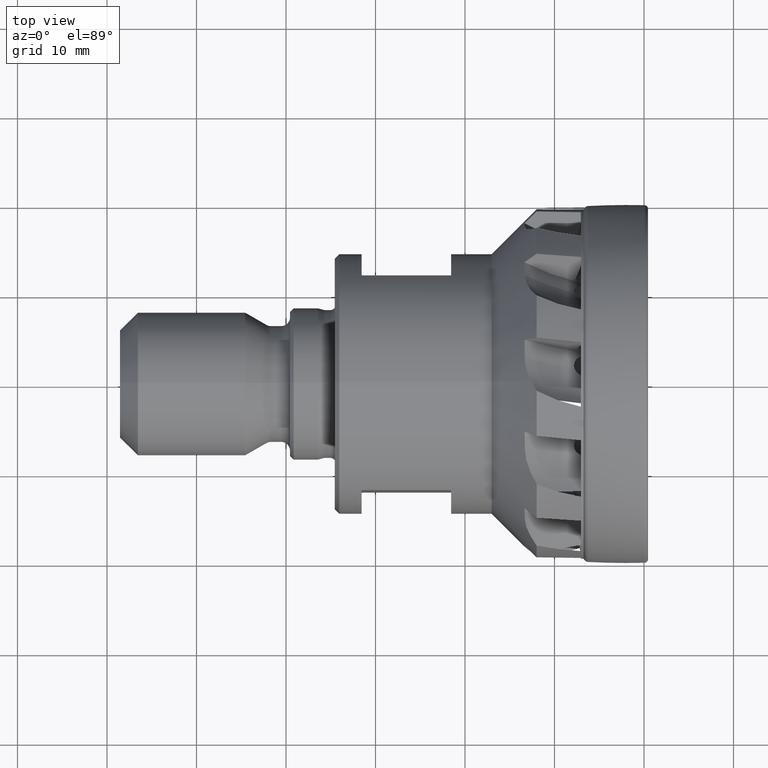
[diagram: clean part render]
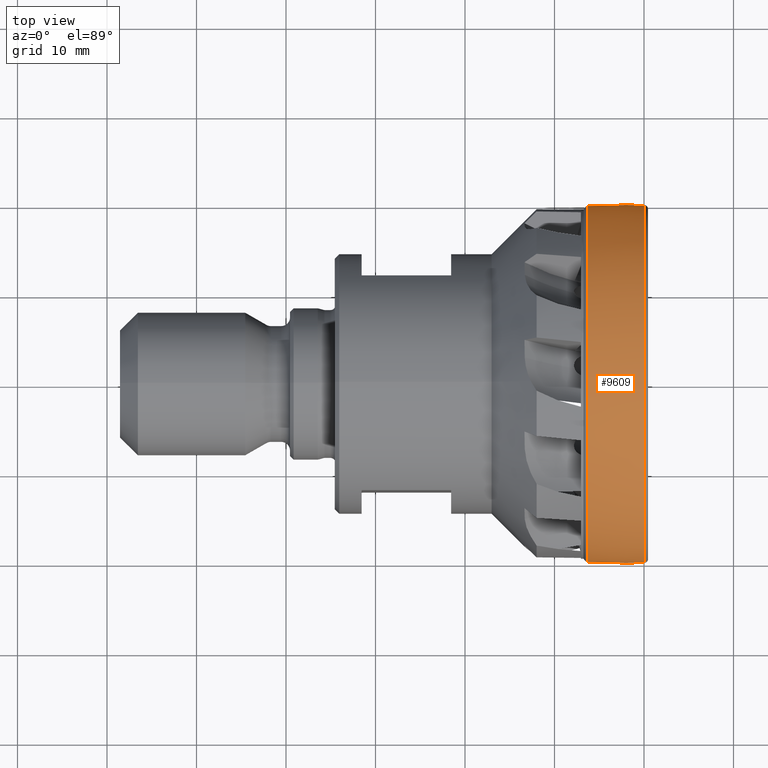
[diagram: same view with one face highlighted and labeled with its STEP entity id]
A machine part, top view. The second image highlights one B-rep face of the part: STEP entity #9609.
In plain terms, the highlighted toroidal blend (fillet) surface has major radius 66.0601 mm and minor (blend) radius 86.0601 mm.
Its self-contained STEP definition (entity closure, byte-faithful):
#73 = VERTEX_POINT ( 'NONE', #8918 ) ;
#74 = VERTEX_POINT ( 'NONE', #8919 ) ;
#75 = VERTEX_POINT ( 'NONE', #8920 ) ;
#76 = VERTEX_POINT ( 'NONE', #8921 ) ;
#938 = EDGE_LOOP ( 'NONE', ( #2256, #2258, #2369, #2367 ) ) ;
#1318 = DIRECTION ( 'NONE',  ( 1.000000000000000000, 1.571897673459263300E-016, -0.0000000000000000000 ) ) ;
#1320 = FACE_OUTER_BOUND ( 'NONE', #938, .T. ) ;
#1321 = CARTESIAN_POINT ( 'NONE',  ( -1.904730119523834600, 0.0000000000000000000, 0.0000000000000000000 ) ) ;
#1323 = DIRECTION ( 'NONE',  ( -1.571897673459263300E-016, 1.000000000000000000, 0.0000000000000000000 ) ) ;
#2256 = ORIENTED_EDGE ( 'NONE', *, *, #9915, .T. ) ;
#2258 = ORIENTED_EDGE ( 'NONE', *, *, #9798, .T. ) ;
#2367 = ORIENTED_EDGE ( 'NONE', *, *, #9799, .F. ) ;
#2369 = ORIENTED_EDGE ( 'NONE', *, *, #9795, .F. ) ;
#2612 = CIRCLE ( 'NONE', #2619, 19.97752900429670200 ) ;
#2616 = CIRCLE ( 'NONE', #2632, 86.06012743569229400 ) ;
#2619 = AXIS2_PLACEMENT_3D ( 'NONE', #5191, #5192, #5193 ) ;
#2625 = CIRCLE ( 'NONE', #2636, 86.06012743569229400 ) ;
#2632 = AXIS2_PLACEMENT_3D ( 'NONE', #5200, #5201, #5202 ) ;
#2636 = AXIS2_PLACEMENT_3D ( 'NONE', #5205, #5206, #5207 ) ;
#2836 = CIRCLE ( 'NONE', #2839, 19.89029664970029300 ) ;
#2839 = AXIS2_PLACEMENT_3D ( 'NONE', #5821, #5822, #5824 ) ;
#5191 = CARTESIAN_POINT ( 'NONE',  ( 0.06179182594681729300, -1.110176161091528400E-015, 0.0000000000000000000 ) ) ;
#5192 = DIRECTION ( 'NONE',  ( 1.000000000000000000, 1.571897673459263300E-016, -0.0000000000000000000 ) ) ;
#5193 = DIRECTION ( 'NONE',  ( -1.573861461811278900E-016, 1.000000000000000000, 0.0000000000000000000 ) ) ;
#5200 = CARTESIAN_POINT ( 'NONE',  ( -1.904730119523845100, 66.06012743569228000, -8.090032361538680100E-015 ) ) ;
#5201 = DIRECTION ( 'NONE',  ( -1.925019454389058200E-032, 1.224646799147353200E-016, 1.000000000000000000 ) ) ;
#5202 = DIRECTION ( 'NONE',  ( 0.0000000000000000000, -1.000000000000000000, 1.224646799147353200E-016 ) ) ;
#5205 = CARTESIAN_POINT ( 'NONE',  ( -1.904730119523824200, -66.06012743569228000, 0.0000000000000000000 ) ) ;
#5206 = DIRECTION ( 'NONE',  ( -0.0000000000000000000, 0.0000000000000000000, -1.000000000000000000 ) ) ;
#5207 = DIRECTION ( 'NONE',  ( -1.000000000000000000, 0.0000000000000000000, 0.0000000000000000000 ) ) ;
#5821 = CARTESIAN_POINT ( 'NONE',  ( -6.248706844687490000, -2.102121978965312600E-015, 0.0000000000000000000 ) ) ;
#5822 = DIRECTION ( 'NONE',  ( 1.000000000000000000, 1.571897673459263300E-016, -0.0000000000000000000 ) ) ;
#5824 = DIRECTION ( 'NONE',  ( -1.744291205433525700E-016, 1.000000000000000000, 0.0000000000000000000 ) ) ;
#8152 = TOROIDAL_SURFACE ( 'NONE', #8157, -66.06012743569228000, 86.06012743569229400 ) ;
#8157 = AXIS2_PLACEMENT_3D ( 'NONE', #1321, #1318, #1323 ) ;
#8918 = CARTESIAN_POINT ( 'NONE',  ( -6.248706844687486500, -19.89029664970029600, 2.441200253806608300E-015 ) ) ;
#8919 = CARTESIAN_POINT ( 'NONE',  ( -6.248706844687493600, 19.89029664970028900, 0.0000000000000000000 ) ) ;
#8920 = CARTESIAN_POINT ( 'NONE',  ( 0.06179182594682043600, -19.97752900429670200, 2.446541694998536500E-015 ) ) ;
#8921 = CARTESIAN_POINT ( 'NONE',  ( 0.06179182594681415000, 19.97752900429670200, 0.0000000000000000000 ) ) ;
#9609 = ADVANCED_FACE ( 'NONE', ( #1320 ), #8152, .T. ) ;
#9795 = EDGE_CURVE ( 'NONE', #76, #75, #2612, .T. ) ;
#9798 = EDGE_CURVE ( 'NONE', #73, #75, #2616, .T. ) ;
#9799 = EDGE_CURVE ( 'NONE', #74, #76, #2625, .T. ) ;
#9915 = EDGE_CURVE ( 'NONE', #74, #73, #2836, .T. ) ;